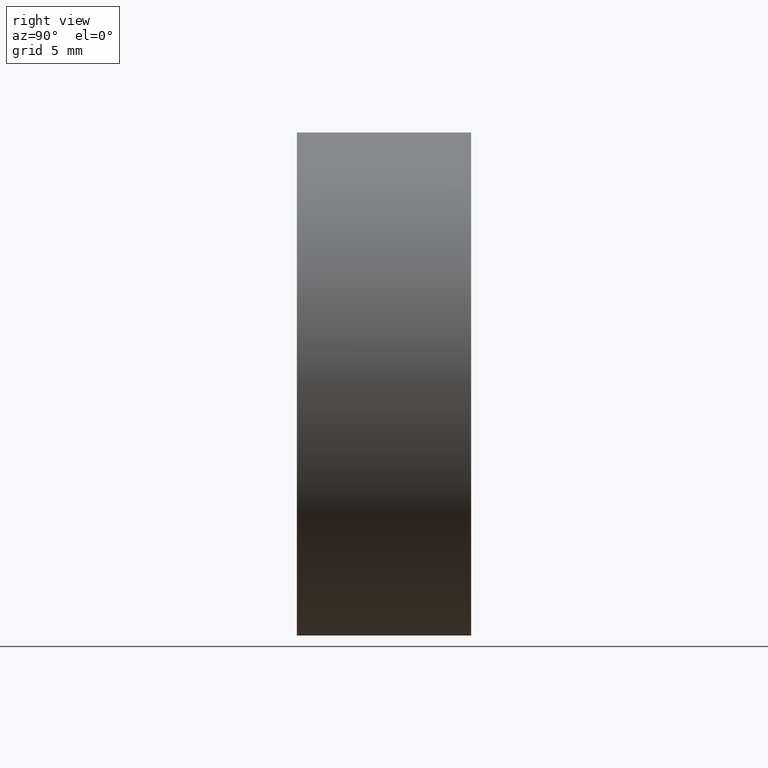
[diagram: clean part render]
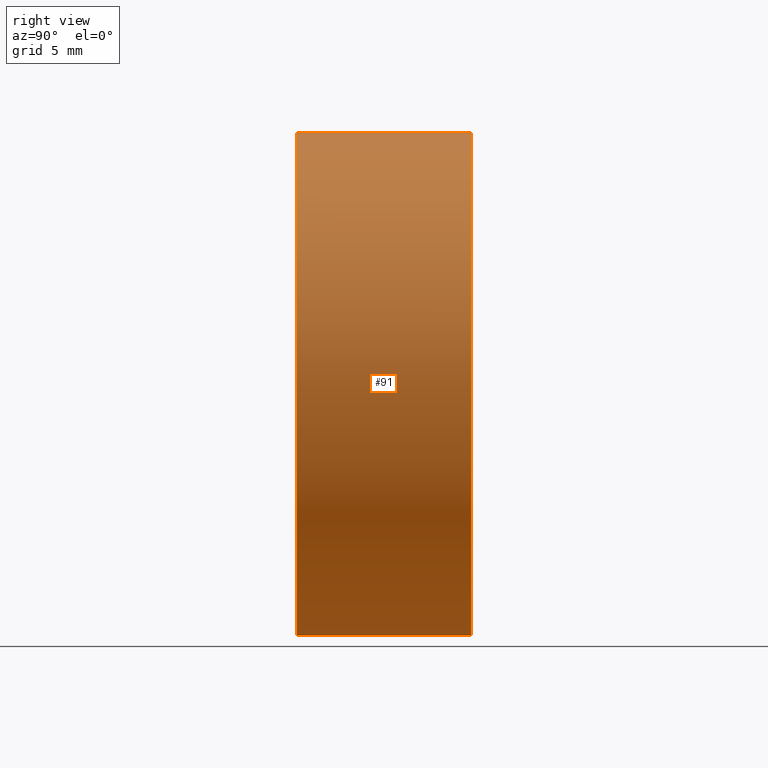
[diagram: same view with one face highlighted and labeled with its STEP entity id]
A machine part, right view. The second image highlights one B-rep face of the part: STEP entity #91.
In plain terms, the highlighted cylindrical surface (partial cylindrical patch) has radius 15.875 mm, axis along (-0, 1, -0).
Its self-contained STEP definition (entity closure, byte-faithful):
#3 = VERTEX_POINT ( 'NONE', #223 ) ;
#19 = VERTEX_POINT ( 'NONE', #143 ) ;
#50 = CYLINDRICAL_SURFACE ( 'NONE', #361, 15.87500000000000400 ) ;
#58 = EDGE_LOOP ( 'NONE', ( #134, #163, #403, #74 ) ) ;
#61 = LINE ( 'NONE', #64, #286 ) ;
#64 = CARTESIAN_POINT ( 'NONE',  ( 0.0000000000000000000, 60.02082041425541100, 15.87500000000000400 ) ) ;
#74 = ORIENTED_EDGE ( 'NONE', *, *, #429, .F. ) ;
#91 = ADVANCED_FACE ( 'NONE', ( #421 ), #50, .T. ) ;
#100 = CARTESIAN_POINT ( 'NONE',  ( 1.944126793646423600E-015, 0.0000000000000000000, -15.87500000000000400 ) ) ;
#120 = DIRECTION ( 'NONE',  ( 0.0000000000000000000, 0.0000000000000000000, 1.000000000000000000 ) ) ;
#134 = ORIENTED_EDGE ( 'NONE', *, *, #245, .T. ) ;
#137 = DIRECTION ( 'NONE',  ( -0.0000000000000000000, 1.000000000000000000, -0.0000000000000000000 ) ) ;
#139 = CARTESIAN_POINT ( 'NONE',  ( 1.944126793646423600E-015, 60.02082041425541100, -15.87500000000000400 ) ) ;
#143 = CARTESIAN_POINT ( 'NONE',  ( 0.0000000000000000000, 0.0000000000000000000, 15.87500000000000400 ) ) ;
#163 = ORIENTED_EDGE ( 'NONE', *, *, #418, .T. ) ;
#210 = CARTESIAN_POINT ( 'NONE',  ( 0.0000000000000000000, 10.99999999999999600, 0.0000000000000000000 ) ) ;
#223 = CARTESIAN_POINT ( 'NONE',  ( 0.0000000000000000000, 10.99999999999999600, 15.87500000000000400 ) ) ;
#225 = DIRECTION ( 'NONE',  ( -0.0000000000000000000, 1.000000000000000000, -0.0000000000000000000 ) ) ;
#237 = VECTOR ( 'NONE', #431, 1000.000000000000000 ) ;
#244 = DIRECTION ( 'NONE',  ( -0.0000000000000000000, 1.000000000000000000, -0.0000000000000000000 ) ) ;
#245 = EDGE_CURVE ( 'NONE', #19, #415, #250, .T. ) ;
#249 = DIRECTION ( 'NONE',  ( 0.0000000000000000000, 0.0000000000000000000, 1.000000000000000000 ) ) ;
#250 = CIRCLE ( 'NONE', #347, 15.87500000000000400 ) ;
#254 = CARTESIAN_POINT ( 'NONE',  ( 1.944126793646423600E-015, 10.99999999999999600, -15.87500000000000400 ) ) ;
#267 = DIRECTION ( 'NONE',  ( 0.0000000000000000000, 0.0000000000000000000, 1.000000000000000000 ) ) ;
#286 = VECTOR ( 'NONE', #225, 1000.000000000000000 ) ;
#309 = AXIS2_PLACEMENT_3D ( 'NONE', #210, #137, #120 ) ;
#325 = EDGE_CURVE ( 'NONE', #3, #370, #427, .T. ) ;
#338 = CARTESIAN_POINT ( 'NONE',  ( 0.0000000000000000000, 60.02082041425541100, 0.0000000000000000000 ) ) ;
#342 = LINE ( 'NONE', #139, #237 ) ;
#346 = DIRECTION ( 'NONE',  ( -0.0000000000000000000, 1.000000000000000000, -0.0000000000000000000 ) ) ;
#347 = AXIS2_PLACEMENT_3D ( 'NONE', #422, #346, #249 ) ;
#361 = AXIS2_PLACEMENT_3D ( 'NONE', #338, #244, #267 ) ;
#370 = VERTEX_POINT ( 'NONE', #254 ) ;
#403 = ORIENTED_EDGE ( 'NONE', *, *, #325, .F. ) ;
#415 = VERTEX_POINT ( 'NONE', #100 ) ;
#418 = EDGE_CURVE ( 'NONE', #415, #370, #342, .T. ) ;
#421 = FACE_OUTER_BOUND ( 'NONE', #58, .T. ) ;
#422 = CARTESIAN_POINT ( 'NONE',  ( 0.0000000000000000000, 0.0000000000000000000, 0.0000000000000000000 ) ) ;
#427 = CIRCLE ( 'NONE', #309, 15.87500000000000400 ) ;
#429 = EDGE_CURVE ( 'NONE', #19, #3, #61, .T. ) ;
#431 = DIRECTION ( 'NONE',  ( -0.0000000000000000000, 1.000000000000000000, -0.0000000000000000000 ) ) ;